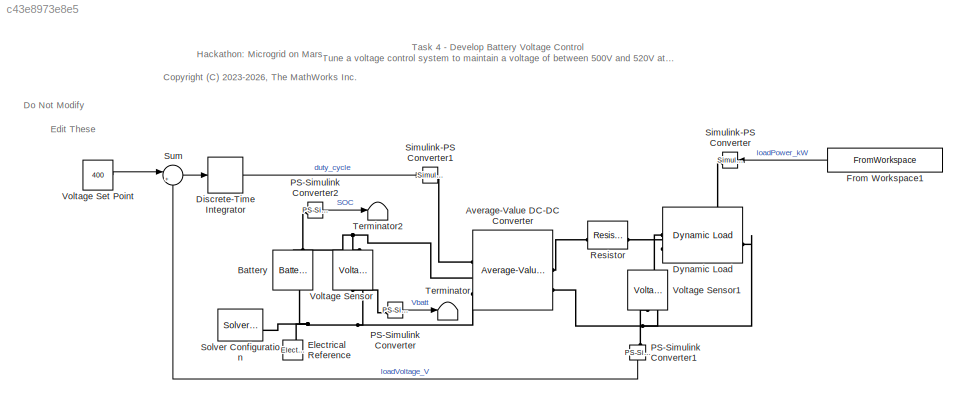
MODEL slx_c43e8973e8e5
KIND model
CONFIG SolverName = VariableStepAuto
CONFIG StopTime = 3600*24*2
BLOCK [Reference] Average-Value DC-DC Converter  REF=ee_lib/Semiconductors &
Converters/Converters/Average-Value DC-DC
Converter
  SourceBlock = ee_lib/Semiconductors &\nConverters/Converters/Average-Value DC-DC\nConverter
  SourceType = Average-Value DC-DC\nConverter
BLOCK [Reference] Battery   REF=batteryecm_lib/Battery
(Table-Based)
  LibrarySourceBlock = ee_lib/Sources/Battery\n(Table-Based)
  NameLocation = left
  SourceBlock = batteryecm_lib/Battery\n(Table-Based)
  SourceType = Battery\n(Table-Based)
BLOCK [DiscreteIntegrator] Discrete-Time Integrator
  ICPrevOutput = DiscIntNeverNeededParam
  ICPrevScaledInput = DiscIntNeverNeededParam
  InitialCondition = 0.45
  InitialConditionSetting = Auto
  SampleTime = -1
  gainval = 1e-8
BLOCK [Reference] Dynamic Load  REF=ee_lib/Passive/Dynamic Load
  SourceBlock = ee_lib/Passive/Dynamic Load
  SourceType = Dynamic Load
BLOCK [Reference] Electrical Reference  REF=fl_lib/Electrical/Electrical Elements/Electrical Reference
  NameLocation = right
  SourceBlock = fl_lib/Electrical/Electrical Elements/Electrical Reference
  SourceType = Electrical Reference
BLOCK [FromWorkspace] From Workspace1
  NameLocation = top
  VariableName = [t loadPower]
BLOCK [Reference] PS-Simulink Converter  REF=nesl_utility/PS-Simulink
Converter
  SourceBlock = nesl_utility/PS-Simulink\nConverter
  SourceType = PS-Simulink\nConverter
BLOCK [Reference] PS-Simulink Converter1  REF=nesl_utility/PS-Simulink
Converter
  NameLocation = left
  SourceBlock = nesl_utility/PS-Simulink\nConverter
  SourceType = PS-Simulink\nConverter
BLOCK [Reference] PS-Simulink Converter2  REF=nesl_utility/PS-Simulink
Converter
  SourceBlock = nesl_utility/PS-Simulink\nConverter
  SourceType = PS-Simulink\nConverter
BLOCK [Reference] Resistor  REF=fl_lib/Electrical/Electrical Elements/Resistor
  SourceBlock = fl_lib/Electrical/Electrical Elements/Resistor
  SourceType = Resistor
BLOCK [Reference] Simulink-PS Converter  REF=nesl_utility/Simulink-PS
Converter
  NameLocation = top
  SourceBlock = nesl_utility/Simulink-PS\nConverter
  SourceType = Simulink-PS\nConverter
BLOCK [Reference] Simulink-PS Converter1  REF=nesl_utility/Simulink-PS
Converter
  SourceBlock = nesl_utility/Simulink-PS\nConverter
  SourceType = Simulink-PS\nConverter
BLOCK [Reference] Solver Configuration  REF=nesl_utility/Solver
Configuration
  SourceBlock = nesl_utility/Solver\nConfiguration
  SourceType = Solver\nConfiguration
BLOCK [Sum] Sum
  Inputs = |+-
BLOCK [Terminator] Terminator
BLOCK [Terminator] Terminator2
BLOCK [Reference] Voltage Sensor  REF=fl_lib/Electrical/Electrical Sensors/Voltage Sensor
  NameLocation = right
  SourceBlock = fl_lib/Electrical/Electrical Sensors/Voltage Sensor
  SourceType = Voltage Sensor
BLOCK [Reference] Voltage Sensor1  REF=fl_lib/Electrical/Electrical Sensors/Voltage Sensor
  NameLocation = right
  SourceBlock = fl_lib/Electrical/Electrical Sensors/Voltage Sensor
  SourceType = Voltage Sensor
BLOCK [Constant] Voltage Set Point
  Value = 400
ANNOTATION (root): Hackathon: Microgrid on Mars <copyright redacted>
ANNOTATION (root): Task 4 - Develop Battery Voltage Control Tune a voltage control system to maintain a voltage of between 500V and 520V at the load.
ANNOTATION (root): Do Not Modify
ANNOTATION (root): Edit These
LINE Discrete-Time Integrator:1 -> Simulink-PS Converter1:1
LINE From Workspace1:1 -> Simulink-PS Converter:1
LINE PS-Simulink Converter1:1 -> Sum:2
LINE PS-Simulink Converter2:1 -> Terminator2:1
LINE PS-Simulink Converter:1 -> Terminator:1
LINE Sum:1 -> Discrete-Time Integrator:1
LINE Voltage Set Point:1 -> Sum:1
PLINE Average-Value DC-DC Converter:LConn1 -- Simulink-PS Converter1:RConn1
PNET net1: Average-Value DC-DC Converter:LConn2 -- Battery :LConn1 -- Voltage Sensor:LConn1
PNET net2: Average-Value DC-DC Converter:LConn3 -- Battery :RConn1 -- Electrical Reference:LConn1 -- Solver Configuration:RConn1 -- Voltage Sensor:RConn2
PLINE Average-Value DC-DC Converter:RConn1 -- Resistor:LConn1
PNET net3: Average-Value DC-DC Converter:RConn2 -- Dynamic Load:RConn1 -- Voltage Sensor1:RConn2
PLINE Battery :LConn2 -- PS-Simulink Converter2:LConn1
PNET net4: Dynamic Load:LConn1 -- Resistor:RConn1 -- Voltage Sensor1:LConn1
PLINE Dynamic Load:LConn2 -- Simulink-PS Converter:RConn1
PLINE PS-Simulink Converter1:LConn1 -- Voltage Sensor1:RConn1
PLINE PS-Simulink Converter:LConn1 -- Voltage Sensor:RConn1
note: PNET lines group multi-terminal physical nets as a canonical sorted terminal list (undirected conserving connections); 2-terminal nets keep the pairwise PLINE form
